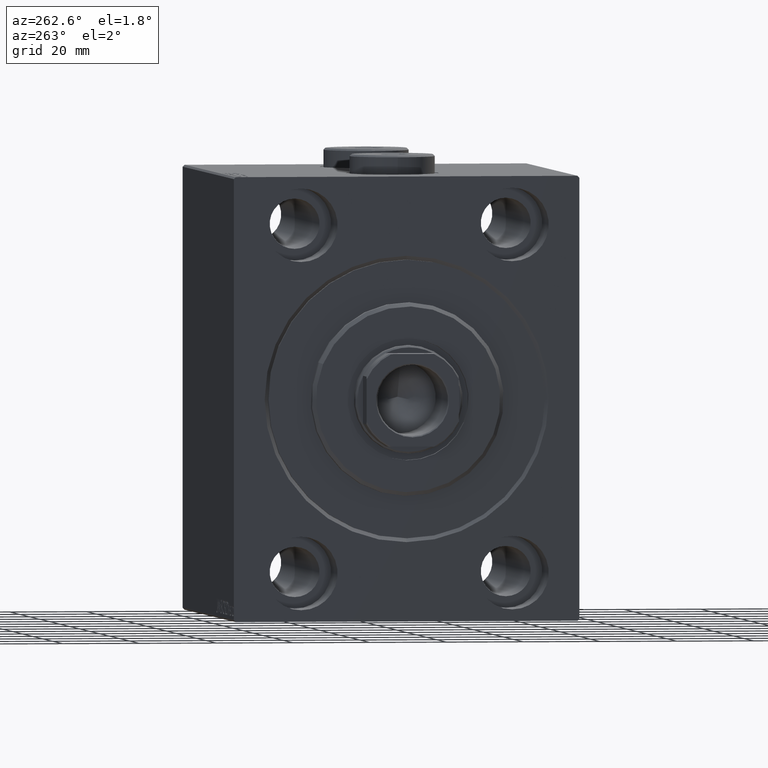
[diagram: clean part render]
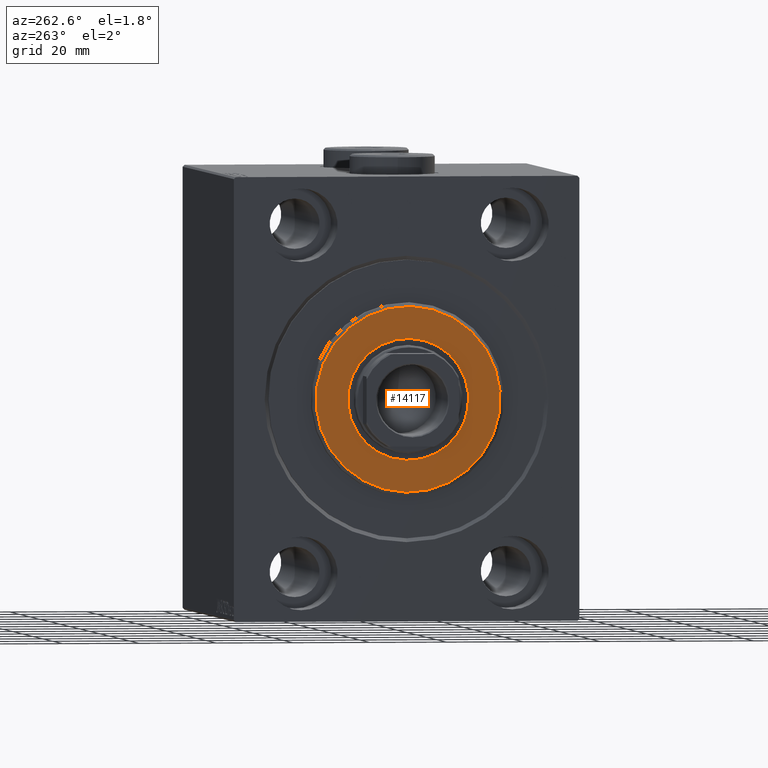
[diagram: same view with one face highlighted and labeled with its STEP entity id]
A machine part, auxiliary view. The second image highlights one B-rep face of the part: STEP entity #14117.
In plain terms, the highlighted planar face has unit normal (-1, 0, 0).
Its self-contained STEP definition (entity closure, byte-faithful):
#1350 = ORIENTED_EDGE ( 'NONE', *, *, #7267, .T. ) ;
#1808 = CARTESIAN_POINT ( 'NONE',  ( 3.000000000000000000, 0.000000000000000000, 15.75000000000000000 ) ) ;
#2149 = EDGE_CURVE ( 'NONE', #24862, #31995, #14790, .T. ) ;
#5009 = DIRECTION ( 'NONE',  ( -1.000000000000000000, 0.000000000000000000, -0.000000000000000000 ) ) ;
#5842 = VERTEX_POINT ( 'NONE', #10875 ) ;
#6427 = CARTESIAN_POINT ( 'NONE',  ( 3.000000000000000000, 0.000000000000000000, 0.000000000000000000 ) ) ;
#7267 = EDGE_CURVE ( 'NONE', #42592, #5842, #15124, .T. ) ;
#7410 = CIRCLE ( 'NONE', #32897, 24.00000000000003553 ) ;
#9682 = AXIS2_PLACEMENT_3D ( 'NONE', #6427, #30834, #13944 ) ;
#9838 = DIRECTION ( 'NONE',  ( 1.000000000000000000, -0.000000000000000000, 0.000000000000000000 ) ) ;
#10875 = CARTESIAN_POINT ( 'NONE',  ( 3.000000000000000000, 1.928818708657080950E-15, -15.75000000000000000 ) ) ;
#13254 = ORIENTED_EDGE ( 'NONE', *, *, #2149, .T. ) ;
#13754 = AXIS2_PLACEMENT_3D ( 'NONE', #29995, #30670, #40266 ) ;
#13944 = DIRECTION ( 'NONE',  ( 0.000000000000000000, 0.000000000000000000, -1.000000000000000000 ) ) ;
#14117 = ADVANCED_FACE ( 'NONE', ( #26338, #43916 ), #44366, .T. ) ;
#14532 = ORIENTED_EDGE ( 'NONE', *, *, #28792, .T. ) ;
#14790 = CIRCLE ( 'NONE', #9682, 24.00000000000003553 ) ;
#15124 = CIRCLE ( 'NONE', #37690, 15.75000000000000000 ) ;
#15457 = CARTESIAN_POINT ( 'NONE',  ( 3.000000000000000000, 0.000000000000000000, 24.00000000000003553 ) ) ;
#15618 = CARTESIAN_POINT ( 'NONE',  ( 3.000000000000000000, 0.000000000000000000, 0.000000000000000000 ) ) ;
#18933 = DIRECTION ( 'NONE',  ( 0.000000000000000000, 0.000000000000000000, -1.000000000000000000 ) ) ;
#19229 = AXIS2_PLACEMENT_3D ( 'NONE', #15618, #25874, #29533 ) ;
#24862 = VERTEX_POINT ( 'NONE', #41173 ) ;
#25874 = DIRECTION ( 'NONE',  ( -1.000000000000000000, 0.000000000000000000, -0.000000000000000000 ) ) ;
#26338 = FACE_OUTER_BOUND ( 'NONE', #40608, .T. ) ;
#28792 = EDGE_CURVE ( 'NONE', #5842, #42592, #33054, .T. ) ;
#29533 = DIRECTION ( 'NONE',  ( 0.000000000000000000, 0.000000000000000000, -1.000000000000000000 ) ) ;
#29995 = CARTESIAN_POINT ( 'NONE',  ( 3.000000000000000000, 0.000000000000000000, 0.000000000000000000 ) ) ;
#30670 = DIRECTION ( 'NONE',  ( 1.000000000000000000, -0.000000000000000000, 0.000000000000000000 ) ) ;
#30834 = DIRECTION ( 'NONE',  ( 1.000000000000000000, -0.000000000000000000, 0.000000000000000000 ) ) ;
#31995 = VERTEX_POINT ( 'NONE', #15457 ) ;
#32393 = CARTESIAN_POINT ( 'NONE',  ( 3.000000000000000000, 0.000000000000000000, 0.000000000000000000 ) ) ;
#32897 = AXIS2_PLACEMENT_3D ( 'NONE', #41100, #9838, #37655 ) ;
#33054 = CIRCLE ( 'NONE', #19229, 15.75000000000000000 ) ;
#34373 = EDGE_LOOP ( 'NONE', ( #1350, #14532 ) ) ;
#34750 = ORIENTED_EDGE ( 'NONE', *, *, #42332, .T. ) ;
#37655 = DIRECTION ( 'NONE',  ( 0.000000000000000000, 0.000000000000000000, -1.000000000000000000 ) ) ;
#37690 = AXIS2_PLACEMENT_3D ( 'NONE', #32393, #5009, #18933 ) ;
#40266 = DIRECTION ( 'NONE',  ( 0.000000000000000000, 0.000000000000000000, -1.000000000000000000 ) ) ;
#40608 = EDGE_LOOP ( 'NONE', ( #34750, #13254 ) ) ;
#41100 = CARTESIAN_POINT ( 'NONE',  ( 3.000000000000000000, 0.000000000000000000, 0.000000000000000000 ) ) ;
#41173 = CARTESIAN_POINT ( 'NONE',  ( 3.000000000000000000, 3.000384657911017441E-15, -24.00000000000003553 ) ) ;
#42332 = EDGE_CURVE ( 'NONE', #31995, #24862, #7410, .T. ) ;
#42592 = VERTEX_POINT ( 'NONE', #1808 ) ;
#43916 = FACE_BOUND ( 'NONE', #34373, .T. ) ;
#44366 = PLANE ( 'NONE',  #13754 ) ;